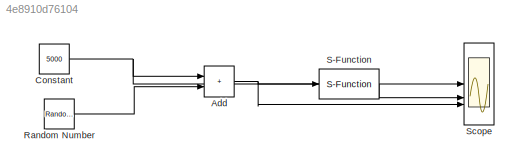
MODEL slx_4e8910d76104
KIND model
CONFIG AbsTol = auto
CONFIG EnableMultiTasking = off
CONFIG FixedStep = auto
CONFIG MaxStep = auto
CONFIG MinStep = auto
CONFIG RelTol = 1e-3
CONFIG SampleTimeConstraint = Unconstrained
CONFIG SolverName = VariableStepAuto
CONFIG StartTime = 0.0
CONFIG StopTime = 10.0
BLOCK [Sum] Add
  IconShape = rectangular
BLOCK [Constant] Constant
  Value = 5000
BLOCK [RandomNumber] Random Number
  SampleTime = 0.1
  Variance = 5
BLOCK [S-Function] S-Function
  EnableBusSupport = off
  FunctionName = SimuKalmanFilter
  SFcnIsStateOwnerBlock = off
  SFunctionDeploymentMode = off
BLOCK [Scope] Scope
  Floating = off
  NumInputPorts = 3
  ScopeSpecificationString = Simulink.scopes.TimeScopeBlockCfg('CurrentConfiguration', extmgr.ConfigurationSet(extmgr.Configuration('Core','General UI',true),extmgr.Configuration('Core','Source UI',true),extmgr.Configuration('Sources','WiredSimulink',true),extmgr.Configuration('Visuals','Time Domain',true,'SerializedDisplays',{struct('MinYLimReal','4000.00000','MaxYLimReal','6000.00000','YLabelReal','','MinYLimMag','4000.0000...<+2742ch>
NET Add:1 -> S-Function:1, Scope:3
NET Constant:1 -> Add:1, Scope:1
LINE Random Number:1 -> Add:2
LINE S-Function:1 -> Scope:2
note: NET lines group one-source signal fan-out (src -> all destinations, sorted); 1:1 wires keep LINE
